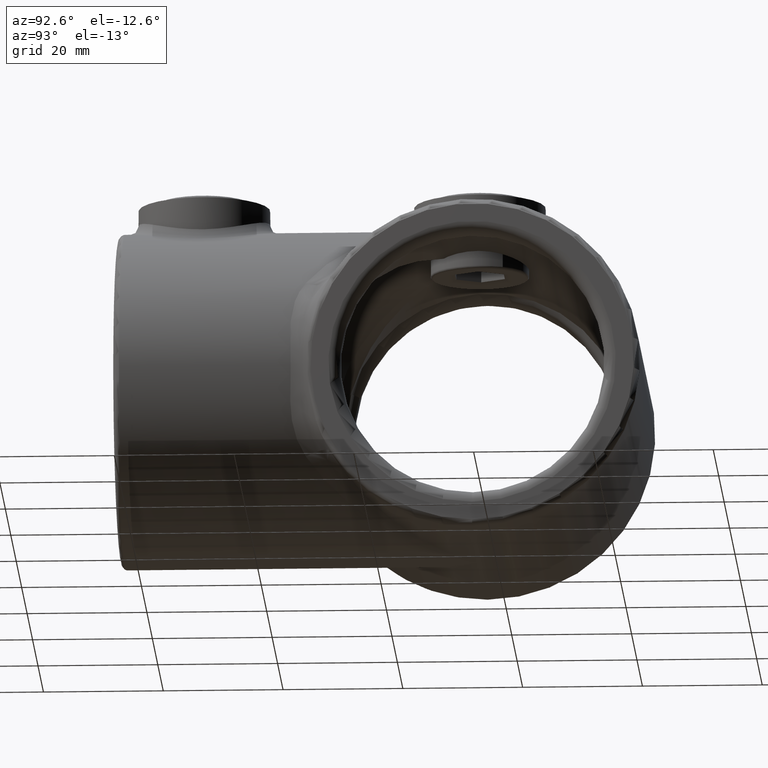
[diagram: clean part render]
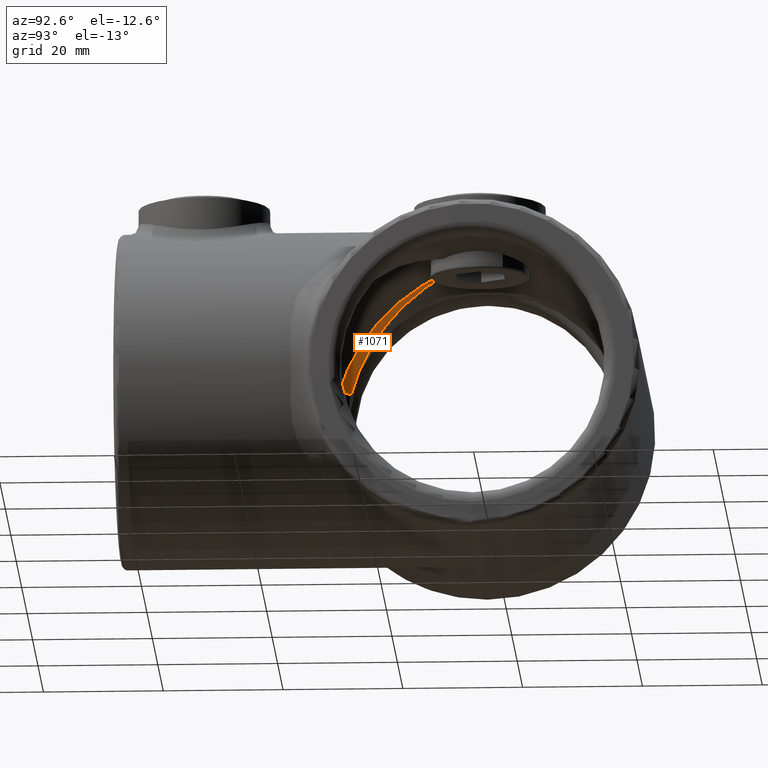
[diagram: same view with one face highlighted and labeled with its STEP entity id]
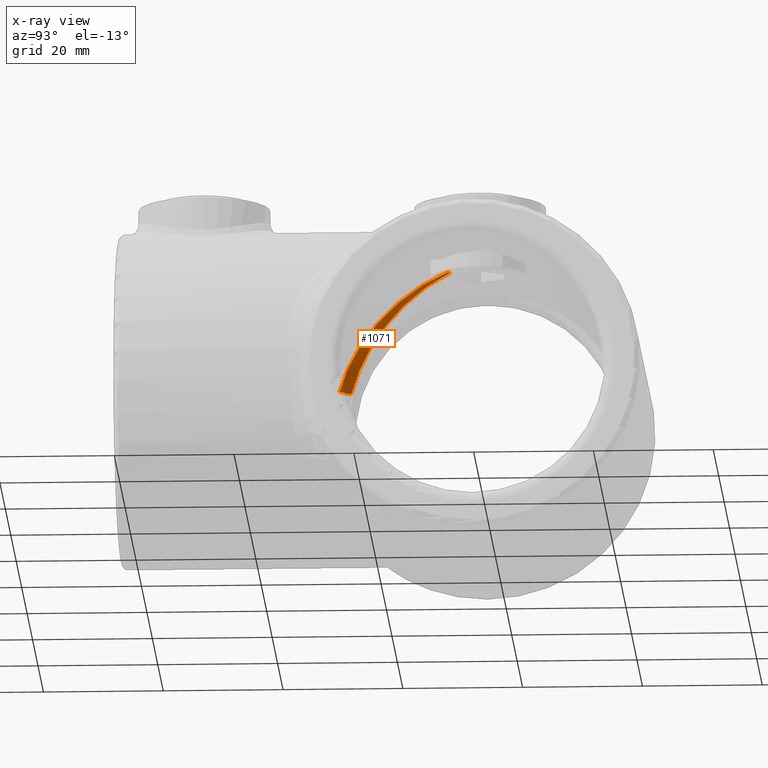
[diagram: x-ray of the same camera — body ghosted, the highlighted face saturated]
A machine part, auxiliary view. The second image highlights one B-rep face of the part: STEP entity #1071.
The next image is the same camera in x-ray: the body ghosted, the highlighted face saturated — about 2% of this face is hidden behind the body in this view.
In plain terms, the highlighted face is a freeform B-spline surface patch.
Its self-contained STEP definition (entity closure, byte-faithful):
#100 = CARTESIAN_POINT ( 'NONE',  ( -22.71563727240269515, 37.28436272759729064, 6.041080069187441559 ) ) ;
#123 = VERTEX_POINT ( 'NONE', #1807 ) ;
#127 = CARTESIAN_POINT ( 'NONE',  ( -15.76262330696896008, 45.47366087397098511, 18.59202743579678341 ) ) ;
#139 = CARTESIAN_POINT ( 'NONE',  ( -24.50000000000000355, 35.50000000000000711, 7.071067811865408004 ) ) ;
#200 = CARTESIAN_POINT ( 'NONE',  ( -24.50000000000000355, 37.42156862745098067, 6.516474257993617236 ) ) ;
#205 = CARTESIAN_POINT ( 'NONE',  ( -5.319891609002544541, 54.53351781664567710, 22.89046121772573983 ) ) ;
#220 = CARTESIAN_POINT ( 'NONE',  ( -5.607089468957106249, 54.83268225409834429, 22.92485174025972228 ) ) ;
#467 = CARTESIAN_POINT ( 'NONE',  ( -21.13828283356527038, 37.06271437208834385, 10.48098332341588623 ) ) ;
#747 = CARTESIAN_POINT ( 'NONE',  ( -22.93728562791164904, 38.86171716643571727, 10.48098332341751338 ) ) ;
#751 = CIRCLE ( 'NONE', #1842, 1.999999999999997113 ) ;
#756 = DIRECTION ( 'NONE',  ( -0.2672135294703870678, -0.2672135294703909536, -0.9258476436952005617 ) ) ;
#787 = CARTESIAN_POINT ( 'NONE',  ( -5.228934677097604400, 54.77106532290238050, 22.91187148246471139 ) ) ;
#821 = CARTESIAN_POINT ( 'NONE',  ( -20.14073215389137061, 38.14516298194766364, 14.96267113322300624 ) ) ;
#924 = CARTESIAN_POINT ( 'NONE',  ( -22.57843137254903709, 35.50000000000000000, 6.516474257993610131 ) ) ;
#934 = CARTESIAN_POINT ( 'NONE',  ( -5.607089468957106249, 54.83268225409834429, 22.92485174025972228 ) ) ;
#1055 = CARTESIAN_POINT ( 'NONE',  ( -9.842770198171406193, 50.92921177815674838, 21.78069818927982126 ) ) ;
#1071 = ADVANCED_FACE ( 'NONE', ( #2334 ), #1535, .T. ) ;
#1084 = CARTESIAN_POINT ( 'NONE',  ( -22.21913630140066687, 37.78086369855915194, 7.917530786434812562 ) ) ;
#1110 = ORIENTED_EDGE ( 'NONE', *, *, #2639, .F. ) ;
#1369 = CARTESIAN_POINT ( 'NONE',  ( -18.93991199317235896, 39.44818060315378005, 14.06974577838590434 ) ) ;
#1383 = CARTESIAN_POINT ( 'NONE',  ( -9.470214268921019141, 50.52978573109452043, 21.61652851319628610 ) ) ;
#1407 = CARTESIAN_POINT ( 'NONE',  ( -23.86685778655949264, 38.00505262805486240, 8.538143176343867324 ) ) ;
#1423 = VERTEX_POINT ( 'NONE', #924 ) ;
#1457 = ORIENTED_EDGE ( 'NONE', *, *, #2576, .F. ) ;
#1535 =( BOUNDED_SURFACE ( )  B_SPLINE_SURFACE ( 3, 2, ( 
 ( #2920, #787, #3852 ),
 ( #2905, #2314, #1699 ),
 ( #2577, #1383, #1055 ),
 ( #2602, #2963, #2005 ),
 ( #1992, #3225, #127 ),
 ( #2590, #3866, #3242 ),
 ( #1369, #1688, #3560 ),
 ( #467, #3879, #747 ),
 ( #2933, #1084, #1407 ),
 ( #1967, #100, #2281 ) ),
 .UNSPECIFIED., .F., .F., .F. ) 
 B_SPLINE_SURFACE_WITH_KNOTS ( ( 4, 2, 2, 2, 4 ),
 ( 3, 3 ),
 ( 4.927677730574238524, 5.196309773848815539, 5.464941817123393442, 5.733573860397971345, 6.002205903672548359 ),
 ( 0.000000000000000000, 1.000000000000000000 ),
 .UNSPECIFIED. ) 
 GEOMETRIC_REPRESENTATION_ITEM ( )  RATIONAL_B_SPLINE_SURFACE ( (
 ( 1.000000000000000000, 0.9885247663903969917, 1.000000000000000000),
 ( 1.000000000000000000, 0.9791086029776389088, 1.000000000000000000),
 ( 1.000000000000000000, 0.9638609756480832624, 1.000000000000000000),
 ( 1.000000000000000000, 0.9248101595925253271, 1.000000000000000000),
 ( 1.000000000000000000, 0.9009646760733381887, 1.000000000000000000),
 ( 1.000000000000000000, 0.8499332130436455524, 1.000000000000000000),
 ( 1.000000000000000000, 0.8227624941734693609, 1.000000000000000000),
 ( 1.000000000000000000, 0.7727660867771201092, 1.000000000000000000),
 ( 1.000000000000000000, 0.7500261140265080950, 1.000000000000000000),
 ( 1.000000000000000000, 0.7337893098495774646, 1.000000000000000000) ) ) 
 REPRESENTATION_ITEM ( '' )  SURFACE ( )  );
#1551 = ORIENTED_EDGE ( 'NONE', *, *, #4055, .F. ) ;
#1688 = CARTESIAN_POINT ( 'NONE',  ( -19.40087358872520440, 40.59912641126610566, 13.43357393646413733 ) ) ;
#1699 = CARTESIAN_POINT ( 'NONE',  ( -7.678378943798585432, 52.92384685571128955, 22.50792590016371619 ) ) ;
#1807 = CARTESIAN_POINT ( 'NONE',  ( -5.607089468957106249, 54.83268225409834429, 22.92485174025972228 ) ) ;
#1842 = AXIS2_PLACEMENT_3D ( 'NONE', #139, #756, #2307 ) ;
#1967 = CARTESIAN_POINT ( 'NONE',  ( -22.57843137254900867, 35.50000000000000711, 6.516474257993651875 ) ) ;
#1992 = CARTESIAN_POINT ( 'NONE',  ( -14.52633912603162436, 44.23737669303103814, 18.59202743579433559 ) ) ;
#2005 = CARTESIAN_POINT ( 'NONE',  ( -13.88515020065605121, 47.20388118762969754, 19.82264755066109529 ) ) ;
#2006 = VERTEX_POINT ( 'NONE', #200 ) ;
#2119 = CARTESIAN_POINT ( 'NONE',  ( -21.85483701805232215, 39.85926784610864360, 14.96267113322300268 ) ) ;
#2215 = ORIENTED_EDGE ( 'NONE', *, *, #2288, .F. ) ;
#2281 = CARTESIAN_POINT ( 'NONE',  ( -24.49999999999998934, 37.42156862745098067, 6.516474257993651875 ) ) ;
#2288 = EDGE_CURVE ( 'NONE', #2006, #1423, #751, .T. ) ;
#2307 = DIRECTION ( 'NONE',  ( 0.000000000000000000, 0.9607843137254905574, -0.2772967769358994916 ) ) ;
#2314 = CARTESIAN_POINT ( 'NONE',  ( -7.386599531551258480, 52.61340046837183593, 22.42027256491816445 ) ) ;
#2329 = CARTESIAN_POINT ( 'NONE',  ( -22.57843137254903709, 35.50000000000000000, 6.516474257993610131 ) ) ;
#2334 = FACE_OUTER_BOUND ( 'NONE', #3418, .T. ) ;
#2373 = CARTESIAN_POINT ( 'NONE',  ( -5.466482183354393065, 54.68010839099753184, 22.89046121772573628 ) ) ;
#2381 = CARTESIAN_POINT ( 'NONE',  ( -13.74310443093648537, 45.08726966004763170, 20.99184841161331860 ) ) ;
#2522 = CARTESIAN_POINT ( 'NONE',  ( -5.167317745901683246, 54.39291053104292217, 22.92485174025972938 ) ) ;
#2576 = EDGE_CURVE ( 'NONE', #3159, #123, #3286, .T. ) ;
#2577 = CARTESIAN_POINT ( 'NONE',  ( -9.070788221845424104, 50.15722980182594171, 21.78069818927867729 ) ) ;
#2590 = CARTESIAN_POINT ( 'NONE',  ( -17.59836857213648997, 40.90389793236099791, 15.71545214675814428 ) ) ;
#2602 = CARTESIAN_POINT ( 'NONE',  ( -12.79611881236811932, 46.11484979934658668, 19.82264755066224282 ) ) ;
#2639 = EDGE_CURVE ( 'NONE', #123, #2006, #3710, .T. ) ;
#2717 = CARTESIAN_POINT ( 'NONE',  ( -14.91273033995234876, 46.25689556906352351, 20.99184841161331505 ) ) ;
#2905 = CARTESIAN_POINT ( 'NONE',  ( -7.076153144278411133, 52.32162105619514136, 22.50792590016596861 ) ) ;
#2920 = CARTESIAN_POINT ( 'NONE',  ( -5.020293755761700893, 54.55244720119474522, 22.95749661016765941 ) ) ;
#2933 = CARTESIAN_POINT ( 'NONE',  ( -21.99494737194244465, 36.13314221341292409, 8.538143176353173658 ) ) ;
#2963 = CARTESIAN_POINT ( 'NONE',  ( -13.29331552347327872, 46.70668447651052446, 19.51361554942068466 ) ) ;
#3159 = VERTEX_POINT ( 'NONE', #2522 ) ;
#3225 = CARTESIAN_POINT ( 'NONE',  ( -15.05138323455398996, 44.94861676544123696, 18.17798461723160486 ) ) ;
#3242 = CARTESIAN_POINT ( 'NONE',  ( -19.09610206763899498, 42.40163142786088457, 15.71545214675569646 ) ) ;
#3286 = B_SPLINE_CURVE_WITH_KNOTS ( 'NONE', 3,
 ( #3317, #205, #2373, #220 ),
 .UNSPECIFIED., .F., .F.,
 ( 4, 4 ),
 ( 0.000000000000000000, 0.0006219311350931695532 ),
 .UNSPECIFIED. ) ;
#3317 = CARTESIAN_POINT ( 'NONE',  ( -5.167317745901683246, 54.39291053104292217, 22.92485174025972938 ) ) ;
#3364 = CARTESIAN_POINT ( 'NONE',  ( -24.50000000000000355, 37.42156862745098067, 6.516474257993617236 ) ) ;
#3389 = CARTESIAN_POINT ( 'NONE',  ( -5.167317745901683246, 54.39291053104292217, 22.92485174025972938 ) ) ;
#3418 = EDGE_LOOP ( 'NONE', ( #1457, #1551, #2215, #1110 ) ) ;
#3535 =( BOUNDED_CURVE ( )  B_SPLINE_CURVE ( 3, ( #2329, #821, #2381, #3389 ),
 .UNSPECIFIED., .F., .T. ) 
 B_SPLINE_CURVE_WITH_KNOTS ( ( 4, 4 ),
 ( 0.2809794035070380946, 1.349098859867186251 ),
 .UNSPECIFIED. ) 
 CURVE ( )  GEOMETRIC_REPRESENTATION_ITEM ( )  RATIONAL_B_SPLINE_CURVE ( ( 1.000000000000000000, 0.9071650920530941464, 0.9071650920530941464, 1.000000000000000000 ) ) 
 REPRESENTATION_ITEM ( '' )  );
#3560 = CARTESIAN_POINT ( 'NONE',  ( -20.55181939684621284, 41.06008800682663207, 14.06974577838427898 ) ) ;
#3710 =( BOUNDED_CURVE ( )  B_SPLINE_CURVE ( 3, ( #934, #2717, #2119, #3364 ),
 .UNSPECIFIED., .F., .T. ) 
 B_SPLINE_CURVE_WITH_KNOTS ( ( 4, 4 ),
 ( 4.934086447312400203, 6.002205903672548359 ),
 .UNSPECIFIED. ) 
 CURVE ( )  GEOMETRIC_REPRESENTATION_ITEM ( )  RATIONAL_B_SPLINE_CURVE ( ( 1.000000000000000000, 0.9071650920530941464, 0.9071650920530941464, 1.000000000000000000 ) ) 
 REPRESENTATION_ITEM ( '' )  );
#3852 = CARTESIAN_POINT ( 'NONE',  ( -5.447552798805248564, 54.97970624423829378, 22.95749661016765941 ) ) ;
#3866 = CARTESIAN_POINT ( 'NONE',  ( -18.11292327090690080, 41.88707672909813340, 15.15138037653346714 ) ) ;
#3879 = CARTESIAN_POINT ( 'NONE',  ( -21.47344574871917899, 38.52655425129004385, 9.809983706553760285 ) ) ;
#4055 = EDGE_CURVE ( 'NONE', #1423, #3159, #3535, .T. ) ;